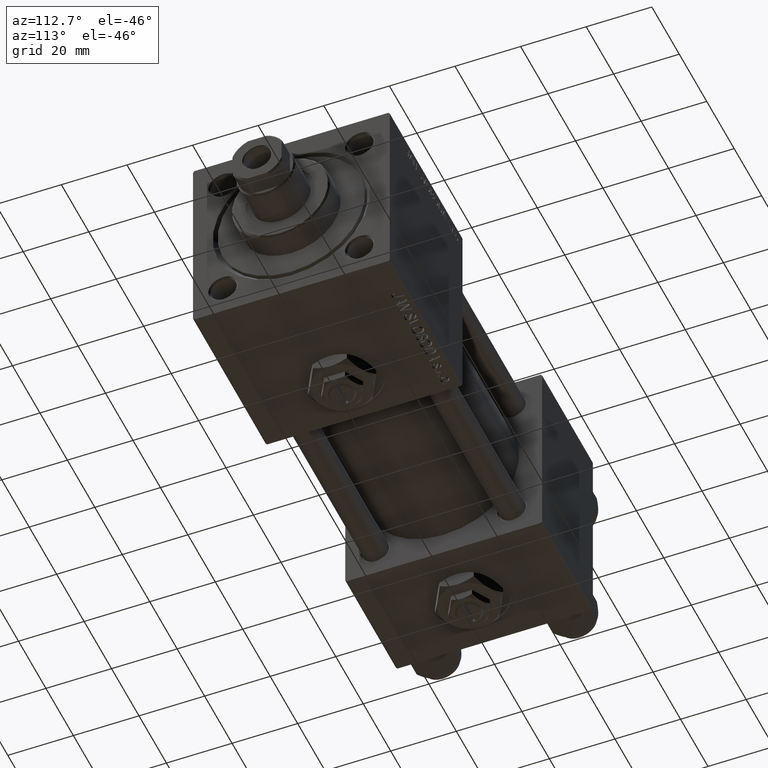
[diagram: clean part render]
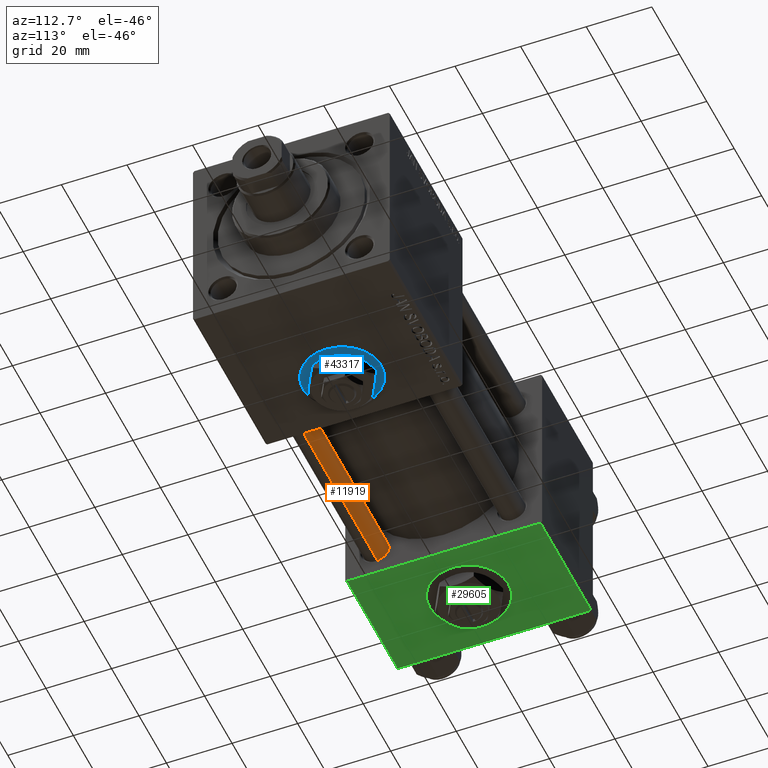
[diagram: same view with three faces highlighted in distinct colors, each labeled with its STEP entity id]
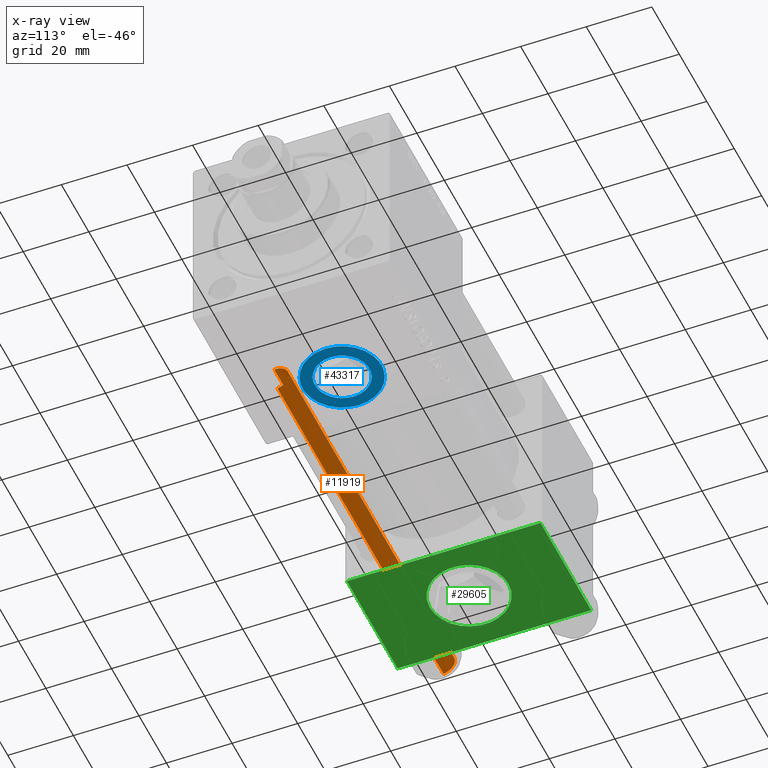
[diagram: x-ray of the same camera — body ghosted, the three highlighted faces saturated]
A machine part, auxiliary view with three faces highlighted in distinct colors.
The next image is the same camera in x-ray (body ghosted, the three faces saturated) — at least one of them is partly hidden behind the body in this view.
Their STEP definitions:

[orange] entity #11919 — the highlighted cylindrical surface (edge-blend (fillet) strip) has radius 4 mm, axis along (-1, -0, -0).
#124 = VERTEX_POINT ( 'NONE', #43378 ) ;
#296 = EDGE_CURVE ( 'NONE', #36885, #124, #24400, .T. ) ;
#2114 = DIRECTION ( 'NONE',  ( 0.000000000000000000, 0.000000000000000000, -1.000000000000000000 ) ) ;
#2136 = CARTESIAN_POINT ( 'NONE',  ( 0.000000000000000000, 0.000000000000000000, 122.0000000000000000 ) ) ;
#5840 = DIRECTION ( 'NONE',  ( 1.000000000000000000, 0.000000000000000000, 0.000000000000000000 ) ) ;
#7117 = DIRECTION ( 'NONE',  ( -1.000000000000000000, 0.000000000000000000, 0.000000000000000000 ) ) ;
#7511 = AXIS2_PLACEMENT_3D ( 'NONE', #10812, #2114, #18211 ) ;
#10812 = CARTESIAN_POINT ( 'NONE',  ( 0.000000000000000000, 0.000000000000000000, 121.5000000000000426 ) ) ;
#11919 = ADVANCED_FACE ( 'NONE', ( #23221 ), #42573, .T. ) ;
#12986 = CARTESIAN_POINT ( 'NONE',  ( 4.000000000000000000, 4.898587196589411843E-16, 0.5000000000000559552 ) ) ;
#13113 = VERTEX_POINT ( 'NONE', #12986 ) ;
#13927 = LINE ( 'NONE', #17620, #34846 ) ;
#15314 = ORIENTED_EDGE ( 'NONE', *, *, #296, .T. ) ;
#16059 = EDGE_CURVE ( 'NONE', #124, #35758, #13927, .T. ) ;
#17620 = CARTESIAN_POINT ( 'NONE',  ( -4.000000000000000000, 0.000000000000000000, 122.0000000000000000 ) ) ;
#17932 = AXIS2_PLACEMENT_3D ( 'NONE', #2136, #35414, #7117 ) ;
#18211 = DIRECTION ( 'NONE',  ( 1.000000000000000000, 0.000000000000000000, 0.000000000000000000 ) ) ;
#21247 = EDGE_CURVE ( 'NONE', #35758, #13113, #38408, .T. ) ;
#23200 = CARTESIAN_POINT ( 'NONE',  ( 4.000000000000000000, 4.898587196589411843E-16, 122.0000000000000000 ) ) ;
#23221 = FACE_OUTER_BOUND ( 'NONE', #25119, .T. ) ;
#23360 = ORIENTED_EDGE ( 'NONE', *, *, #21247, .T. ) ;
#24400 = CIRCLE ( 'NONE', #7511, 4.000000000000000000 ) ;
#25119 = EDGE_LOOP ( 'NONE', ( #48303, #15314, #47078, #23360 ) ) ;
#26017 = CARTESIAN_POINT ( 'NONE',  ( -4.000000000000000000, 0.000000000000000000, 0.5000000000000559552 ) ) ;
#29106 = AXIS2_PLACEMENT_3D ( 'NONE', #46023, #45239, #5840 ) ;
#29736 = CARTESIAN_POINT ( 'NONE',  ( 4.000000000000000000, 4.898587196589411843E-16, 121.5000000000000426 ) ) ;
#30115 = LINE ( 'NONE', #23200, #47308 ) ;
#34846 = VECTOR ( 'NONE', #37468, 1000.000000000000000 ) ;
#35414 = DIRECTION ( 'NONE',  ( -0.000000000000000000, -0.000000000000000000, -1.000000000000000000 ) ) ;
#35758 = VERTEX_POINT ( 'NONE', #26017 ) ;
#36885 = VERTEX_POINT ( 'NONE', #29736 ) ;
#37468 = DIRECTION ( 'NONE',  ( -0.000000000000000000, -0.000000000000000000, -1.000000000000000000 ) ) ;
#38408 = CIRCLE ( 'NONE', #29106, 4.000000000000000000 ) ;
#39098 = DIRECTION ( 'NONE',  ( -0.000000000000000000, -0.000000000000000000, -1.000000000000000000 ) ) ;
#42573 = CYLINDRICAL_SURFACE ( 'NONE', #17932, 4.000000000000000000 ) ;
#43378 = CARTESIAN_POINT ( 'NONE',  ( -4.000000000000000000, 0.000000000000000000, 121.5000000000000426 ) ) ;
#45239 = DIRECTION ( 'NONE',  ( -0.000000000000000000, -0.000000000000000000, 1.000000000000000000 ) ) ;
#46023 = CARTESIAN_POINT ( 'NONE',  ( 0.000000000000000000, 0.000000000000000000, 0.5000000000000559552 ) ) ;
#47078 = ORIENTED_EDGE ( 'NONE', *, *, #16059, .T. ) ;
#47308 = VECTOR ( 'NONE', #39098, 1000.000000000000000 ) ;
#48303 = ORIENTED_EDGE ( 'NONE', *, *, #52115, .F. ) ;
#52115 = EDGE_CURVE ( 'NONE', #36885, #13113, #30115, .T. ) ;

[blue] entity #43317 — the highlighted planar face has unit normal (0, 0, -1).
#330 = VERTEX_POINT ( 'NONE', #19231 ) ;
#1711 = DIRECTION ( 'NONE',  ( -1.000000000000000000, 0.000000000000000000, 0.000000000000000000 ) ) ;
#2493 = VERTEX_POINT ( 'NONE', #2920 ) ;
#2875 = CARTESIAN_POINT ( 'NONE',  ( 123.0000000000000000, 4.939023110930435178E-15, -29.79999999999999716 ) ) ;
#2920 = CARTESIAN_POINT ( 'NONE',  ( 99.00000000000000000, 3.469446951953613794E-15, -29.79999999999999716 ) ) ;
#4167 = VERTEX_POINT ( 'NONE', #13859 ) ;
#5303 = EDGE_CURVE ( 'NONE', #330, #4167, #41474, .T. ) ;
#6530 = CIRCLE ( 'NONE', #21703, 8.330000000000003624 ) ;
#6595 = AXIS2_PLACEMENT_3D ( 'NONE', #52095, #27230, #35712 ) ;
#6960 = EDGE_LOOP ( 'NONE', ( #8509, #50125 ) ) ;
#8111 = EDGE_LOOP ( 'NONE', ( #44675, #41156 ) ) ;
#8509 = ORIENTED_EDGE ( 'NONE', *, *, #5303, .F. ) ;
#9747 = CARTESIAN_POINT ( 'NONE',  ( 111.0000000000000000, 3.469446951953613794E-15, -29.79999999999999716 ) ) ;
#11383 = PLANE ( 'NONE',  #6595 ) ;
#13859 = CARTESIAN_POINT ( 'NONE',  ( 119.3300000000000125, 4.489577735643358162E-15, -29.79999999999999716 ) ) ;
#16053 = DIRECTION ( 'NONE',  ( 0.000000000000000000, 0.000000000000000000, -1.000000000000000000 ) ) ;
#17137 = DIRECTION ( 'NONE',  ( 0.000000000000000000, 0.000000000000000000, -1.000000000000000000 ) ) ;
#19231 = CARTESIAN_POINT ( 'NONE',  ( 102.6700000000000017, 3.469446951953613794E-15, -29.79999999999999716 ) ) ;
#19741 = DIRECTION ( 'NONE',  ( -1.000000000000000000, 0.000000000000000000, 0.000000000000000000 ) ) ;
#20567 = EDGE_CURVE ( 'NONE', #2493, #48180, #29039, .T. ) ;
#21703 = AXIS2_PLACEMENT_3D ( 'NONE', #30750, #26002, #1711 ) ;
#23461 = DIRECTION ( 'NONE',  ( 0.000000000000000000, 0.000000000000000000, -1.000000000000000000 ) ) ;
#23710 = CARTESIAN_POINT ( 'NONE',  ( 111.0000000000000000, 3.469446951953613794E-15, -29.79999999999999716 ) ) ;
#26002 = DIRECTION ( 'NONE',  ( 0.000000000000000000, 0.000000000000000000, -1.000000000000000000 ) ) ;
#27230 = DIRECTION ( 'NONE',  ( 0.000000000000000000, 0.000000000000000000, -1.000000000000000000 ) ) ;
#28212 = DIRECTION ( 'NONE',  ( -1.000000000000000000, 0.000000000000000000, 0.000000000000000000 ) ) ;
#29039 = CIRCLE ( 'NONE', #35812, 11.99999999999999645 ) ;
#30750 = CARTESIAN_POINT ( 'NONE',  ( 111.0000000000000000, 3.469446951953613794E-15, -29.79999999999999716 ) ) ;
#31521 = EDGE_CURVE ( 'NONE', #4167, #330, #6530, .T. ) ;
#33906 = AXIS2_PLACEMENT_3D ( 'NONE', #48339, #23461, #28212 ) ;
#34565 = AXIS2_PLACEMENT_3D ( 'NONE', #23710, #16053, #19741 ) ;
#35712 = DIRECTION ( 'NONE',  ( -1.000000000000000000, 0.000000000000000000, -0.000000000000000000 ) ) ;
#35812 = AXIS2_PLACEMENT_3D ( 'NONE', #9747, #17137, #37499 ) ;
#37499 = DIRECTION ( 'NONE',  ( -1.000000000000000000, 0.000000000000000000, 0.000000000000000000 ) ) ;
#39143 = FACE_BOUND ( 'NONE', #6960, .T. ) ;
#39640 = CIRCLE ( 'NONE', #34565, 11.99999999999999645 ) ;
#41156 = ORIENTED_EDGE ( 'NONE', *, *, #47041, .T. ) ;
#41474 = CIRCLE ( 'NONE', #33906, 8.330000000000003624 ) ;
#43317 = ADVANCED_FACE ( 'NONE', ( #39143, #43899 ), #11383, .T. ) ;
#43899 = FACE_OUTER_BOUND ( 'NONE', #8111, .T. ) ;
#44675 = ORIENTED_EDGE ( 'NONE', *, *, #20567, .T. ) ;
#47041 = EDGE_CURVE ( 'NONE', #48180, #2493, #39640, .T. ) ;
#48180 = VERTEX_POINT ( 'NONE', #2875 ) ;
#48339 = CARTESIAN_POINT ( 'NONE',  ( 111.0000000000000000, 3.469446951953613794E-15, -29.79999999999999716 ) ) ;
#50125 = ORIENTED_EDGE ( 'NONE', *, *, #31521, .F. ) ;
#52095 = CARTESIAN_POINT ( 'NONE',  ( 111.0000000000000000, 3.469446951953613794E-15, -29.79999999999999716 ) ) ;

[green] entity #29605 — the highlighted planar face has unit normal (0, 0, -1).
#232 = DIRECTION ( 'NONE',  ( 0.000000000000000000, -1.000000000000000000, -1.156482317317871725E-16 ) ) ;
#381 = EDGE_CURVE ( 'NONE', #29679, #27353, #1002, .T. ) ;
#657 = EDGE_LOOP ( 'NONE', ( #5057, #41031, #44594, #3704 ) ) ;
#1002 = LINE ( 'NONE', #25030, #15114 ) ;
#3704 = ORIENTED_EDGE ( 'NONE', *, *, #21273, .T. ) ;
#5057 = ORIENTED_EDGE ( 'NONE', *, *, #46087, .F. ) ;
#5487 = CARTESIAN_POINT ( 'NONE',  ( 18.50000000000000355, 12.00000000000000355, -30.00000000000000711 ) ) ;
#5568 = CARTESIAN_POINT ( 'NONE',  ( 18.50000000000000355, -12.00000000000000000, -30.00000000000000000 ) ) ;
#9033 = VERTEX_POINT ( 'NONE', #5568 ) ;
#9708 = VECTOR ( 'NONE', #31182, 1000.000000000000000 ) ;
#10929 = LINE ( 'NONE', #50089, #24161 ) ;
#13673 = CARTESIAN_POINT ( 'NONE',  ( 37.00000000000000000, 29.49999999999997868, -30.00000000000000000 ) ) ;
#14196 = FACE_OUTER_BOUND ( 'NONE', #657, .T. ) ;
#14994 = DIRECTION ( 'NONE',  ( 0.000000000000000000, -1.734723475976806848E-16, -1.000000000000000000 ) ) ;
#15114 = VECTOR ( 'NONE', #232, 1000.000000000000000 ) ;
#17277 = VERTEX_POINT ( 'NONE', #32736 ) ;
#18153 = PLANE ( 'NONE',  #44442 ) ;
#18335 = DIRECTION ( 'NONE',  ( 1.000000000000000000, 0.000000000000000000, 0.000000000000000000 ) ) ;
#21273 = EDGE_CURVE ( 'NONE', #27353, #43559, #34650, .T. ) ;
#21775 = AXIS2_PLACEMENT_3D ( 'NONE', #51230, #14994, #47267 ) ;
#22117 = DIRECTION ( 'NONE',  ( 0.000000000000000000, 1.000000000000000000, 1.156482317317871725E-16 ) ) ;
#22367 = CARTESIAN_POINT ( 'NONE',  ( 37.00000000000000000, 29.99999999999999289, -30.00000000000000000 ) ) ;
#22620 = CARTESIAN_POINT ( 'NONE',  ( 18.50000000000000355, 2.265018109976774967E-15, -30.00000000000000355 ) ) ;
#24161 = VECTOR ( 'NONE', #18335, 1000.000000000000000 ) ;
#24745 = VERTEX_POINT ( 'NONE', #5487 ) ;
#25030 = CARTESIAN_POINT ( 'NONE',  ( 37.00000000000000000, 29.99999999999999289, -30.00000000000000000 ) ) ;
#27206 = CARTESIAN_POINT ( 'NONE',  ( 0.000000000000000000, -29.50000000000001066, -30.00000000000000711 ) ) ;
#27353 = VERTEX_POINT ( 'NONE', #49416 ) ;
#28797 = EDGE_CURVE ( 'NONE', #17277, #29679, #10929, .T. ) ;
#29397 = CIRCLE ( 'NONE', #21775, 12.00000000000000178 ) ;
#29605 = ADVANCED_FACE ( 'NONE', ( #49897, #14196 ), #18153, .T. ) ;
#29679 = VERTEX_POINT ( 'NONE', #13673 ) ;
#30316 = DIRECTION ( 'NONE',  ( 0.000000000000000000, 1.156482317317871725E-16, -1.000000000000000000 ) ) ;
#31182 = DIRECTION ( 'NONE',  ( -1.000000000000000000, 0.000000000000000000, 0.000000000000000000 ) ) ;
#31640 = CARTESIAN_POINT ( 'NONE',  ( 0.000000000000000000, 29.99999999999999289, -30.00000000000000000 ) ) ;
#32736 = CARTESIAN_POINT ( 'NONE',  ( 0.000000000000000000, 29.49999999999997868, -30.00000000000000000 ) ) ;
#33376 = EDGE_CURVE ( 'NONE', #9033, #24745, #29397, .T. ) ;
#33606 = CIRCLE ( 'NONE', #52173, 12.00000000000000178 ) ;
#34650 = LINE ( 'NONE', #27206, #9708 ) ;
#34818 = DIRECTION ( 'NONE',  ( 0.000000000000000000, -1.734723475976806848E-16, -1.000000000000000000 ) ) ;
#35877 = DIRECTION ( 'NONE',  ( 0.000000000000000000, -1.000000000000000000, -1.156482317317871725E-16 ) ) ;
#36645 = ORIENTED_EDGE ( 'NONE', *, *, #43555, .F. ) ;
#37055 = EDGE_LOOP ( 'NONE', ( #36645, #43766 ) ) ;
#39841 = LINE ( 'NONE', #31640, #48026 ) ;
#41031 = ORIENTED_EDGE ( 'NONE', *, *, #28797, .T. ) ;
#43258 = CARTESIAN_POINT ( 'NONE',  ( 0.000000000000000000, -29.50000000000000000, -30.00000000000000711 ) ) ;
#43555 = EDGE_CURVE ( 'NONE', #24745, #9033, #33606, .T. ) ;
#43559 = VERTEX_POINT ( 'NONE', #43258 ) ;
#43766 = ORIENTED_EDGE ( 'NONE', *, *, #33376, .F. ) ;
#44442 = AXIS2_PLACEMENT_3D ( 'NONE', #22367, #30316, #22117 ) ;
#44594 = ORIENTED_EDGE ( 'NONE', *, *, #381, .T. ) ;
#46087 = EDGE_CURVE ( 'NONE', #17277, #43559, #39841, .T. ) ;
#47267 = DIRECTION ( 'NONE',  ( 0.000000000000000000, 1.000000000000000000, -2.891205793294677833E-16 ) ) ;
#48026 = VECTOR ( 'NONE', #35877, 1000.000000000000000 ) ;
#49416 = CARTESIAN_POINT ( 'NONE',  ( 37.00000000000000000, -29.50000000000000000, -30.00000000000000711 ) ) ;
#49897 = FACE_BOUND ( 'NONE', #37055, .T. ) ;
#50089 = CARTESIAN_POINT ( 'NONE',  ( 37.00000000000000000, 29.49999999999997868, -30.00000000000000000 ) ) ;
#50941 = DIRECTION ( 'NONE',  ( 0.000000000000000000, 1.000000000000000000, -2.891205793294677833E-16 ) ) ;
#51230 = CARTESIAN_POINT ( 'NONE',  ( 18.50000000000000355, 2.265018109976774967E-15, -30.00000000000000355 ) ) ;
#52173 = AXIS2_PLACEMENT_3D ( 'NONE', #22620, #34818, #50941 ) ;